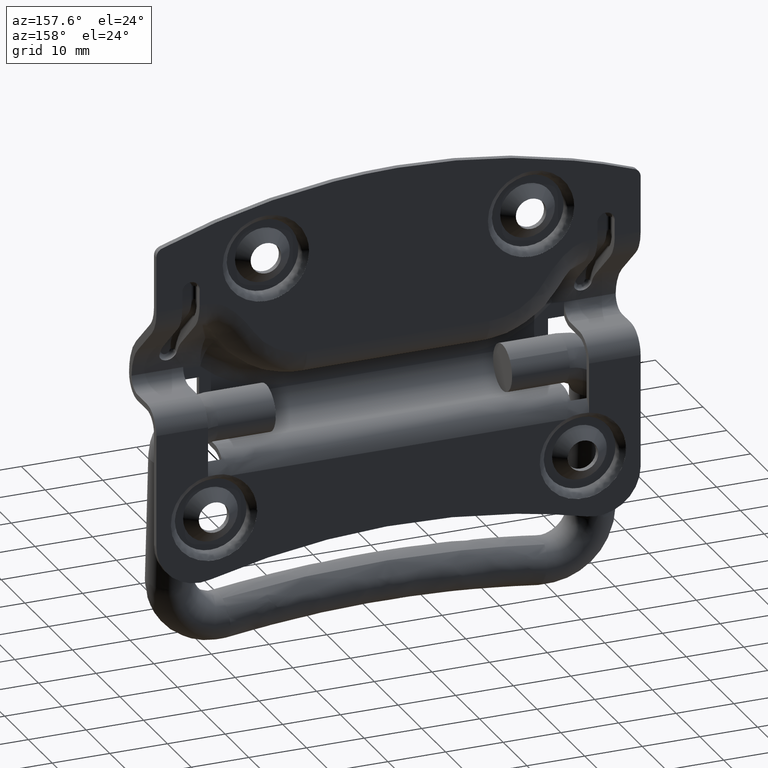
[diagram: clean part render]
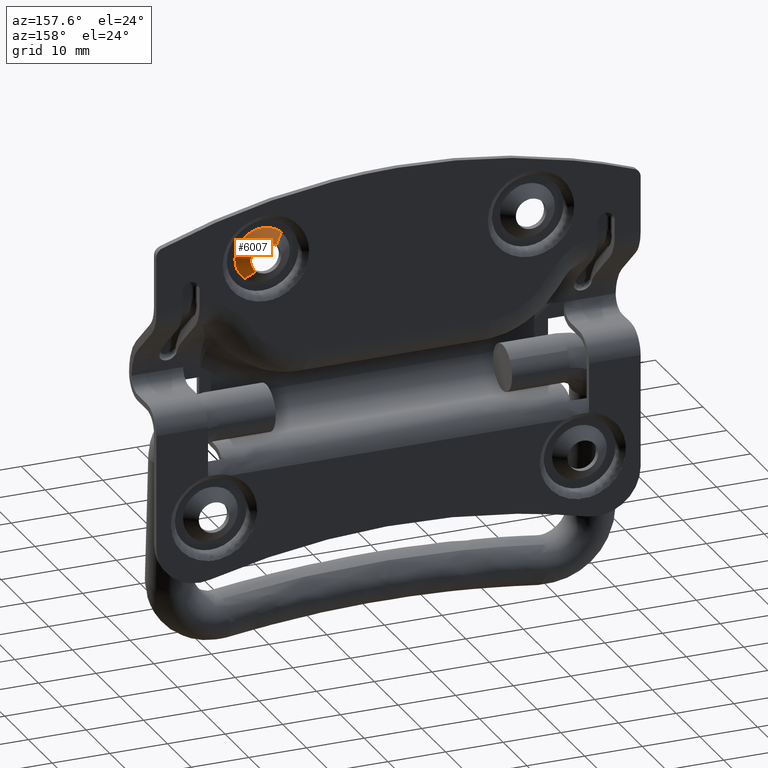
[diagram: same view with one face highlighted and labeled with its STEP entity id]
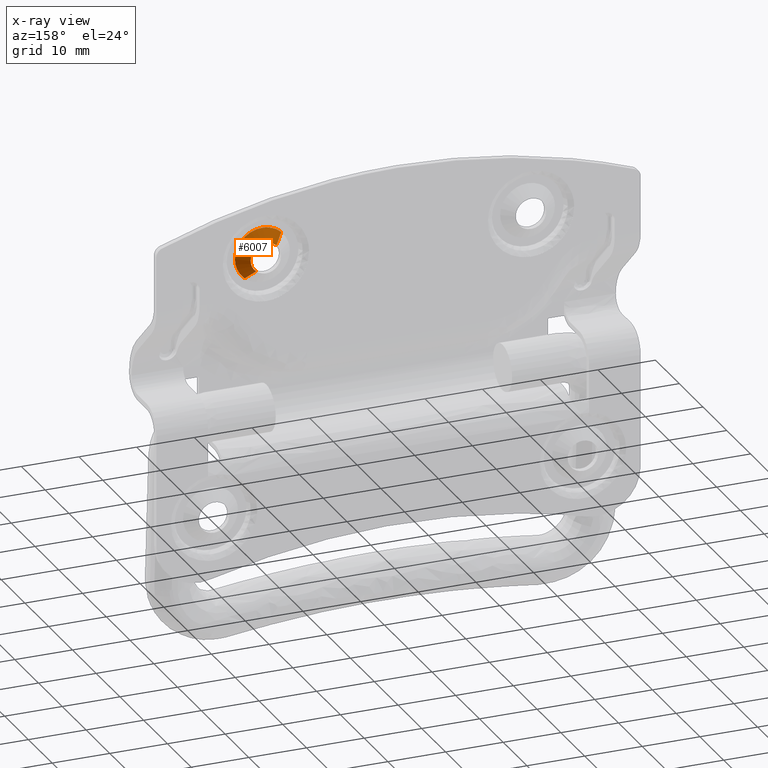
[diagram: x-ray of the same camera — body ghosted, the highlighted face saturated]
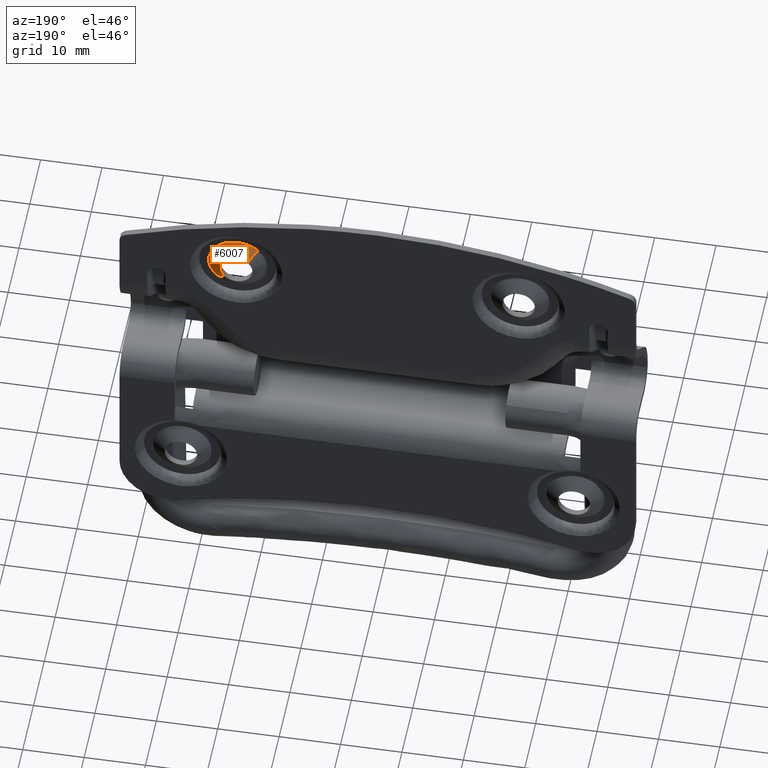
[diagram: same view with one face highlighted and labeled with its STEP entity id]
A machine part, auxiliary view. The second image highlights one B-rep face of the part: STEP entity #6007.
The next image is the same camera in x-ray: the body ghosted, the highlighted face saturated — about 0% of this face is hidden behind the body in this view.
A second angle (auxiliary view) of the same face is appended — the face is thin or edge-on in the first view.
In plain terms, the highlighted face is a freeform B-spline surface patch.
Its self-contained STEP definition (entity closure, byte-faithful):
#5899=CARTESIAN_POINT('',(24.677314944697319,5.973400000000000,27.016664217462147));
#5900=CARTESIAN_POINT('',(24.734077162694859,5.973400000000000,27.064668250556135));
#5901=CARTESIAN_POINT('',(24.788001010364528,5.973400000000000,27.115840071295580));
#5902=CARTESIAN_POINT('',(26.672160939068934,5.973399999999999,28.903841081660108));
#5903=CARTESIAN_POINT('',(24.884159928704420,5.973400000000000,30.788001010364528));
#5904=CARTESIAN_POINT('',(23.096158918339885,5.973399999999999,32.672160939068945));
#5905=CARTESIAN_POINT('',(21.211998989635479,5.973400000000000,30.884159928704420));
#5906=CARTESIAN_POINT('',(26.102023675755053,4.397462500000001,25.332021857997059));
#5907=CARTESIAN_POINT('',(26.206999634309181,4.397462500000001,25.420800442877667));
#5908=CARTESIAN_POINT('',(26.306726315149849,4.397462500000000,25.515437529351541));
#5909=CARTESIAN_POINT('',(29.791288785798315,4.397462500000000,28.822163844501379));
#5910=CARTESIAN_POINT('',(26.484562470648459,4.397462500000000,32.306726315149852));
#5911=CARTESIAN_POINT('',(23.177836155498614,4.397462500000000,35.791288785798308));
#5912=CARTESIAN_POINT('',(19.693273684850151,4.397462500000000,32.484562470648463));
#5920=(BOUNDED_SURFACE()B_SPLINE_SURFACE(2,1,((#5899,#5906),(#5900,#5907),(#5901,#5908),(#5902,#5909),(#5903,#5910),(#5904,#5911),(#5905,#5912)),.UNSPECIFIED.,.F.,.F.,.U.)B_SPLINE_SURFACE_WITH_KNOTS((3,2,2,3),(2,2),(0.0,0.318368686175585,8.277585840565200,16.236802994954811),(0.0,2.711345395106000),.UNSPECIFIED.)GEOMETRIC_REPRESENTATION_ITEM()RATIONAL_B_SPLINE_SURFACE(((0.977505800795127,0.977505800795127),(0.988284271247462,0.988284271247462),(1.0,1.0),(0.707106781186548,0.707106781186548),(1.0,1.0),(0.707106781186548,0.707106781186548),(1.0,1.0)))REPRESENTATION_ITEM('')SURFACE());
#5921=CARTESIAN_POINT('',(26.067273958165138,4.435900319101680,25.373111552290919));
#5922=VERTEX_POINT('',#5921);
#5923=CARTESIAN_POINT('',(27.749999999999211,4.435899999999999,29.000002736673530));
#5924=VERTEX_POINT('',#5923);
#5925=CARTESIAN_POINT('',(26.067273958165138,4.435900319101680,25.373111552290919));
#5926=CARTESIAN_POINT('',(26.494284017991980,4.435900287377616,25.733685518304309));
#5927=CARTESIAN_POINT('',(27.148698796478818,4.435900217851804,26.523912403077780));
#5928=CARTESIAN_POINT('',(27.655409050811208,4.435900104010072,27.817830087049121));
#5929=CARTESIAN_POINT('',(27.750047568103689,4.435900032147841,28.634612705808610));
#5930=CARTESIAN_POINT('',(27.749999999999211,4.435899999999999,29.000002736673530));
#5931=B_SPLINE_CURVE_WITH_KNOTS('',3,(#5925,#5926,#5927,#5928,#5929,#5930),.UNSPECIFIED.,.F.,.U.,(4,1,1,4),(0.000000079574416,1.676545775371363,3.030648860317239,4.126841642862074),.UNSPECIFIED.);
#5932=EDGE_CURVE('',#5922,#5924,#5931,.T.);
#5933=ORIENTED_EDGE('',*,*,#5932,.F.);
#5934=CARTESIAN_POINT('',(24.711215449759340,5.935900419482600,26.976578671817482));
#5935=VERTEX_POINT('',#5934);
#5936=CARTESIAN_POINT('',(24.711215449759340,5.935900419482600,26.976578671817482));
#5937=CARTESIAN_POINT('',(26.067273958165138,4.435900319101680,25.373111552290919));
#5938=QUASI_UNIFORM_CURVE('',1,(#5936,#5937),.UNSPECIFIED.,.F.,.U.);
#5939=EDGE_CURVE('',#5935,#5922,#5938,.T.);
#5940=ORIENTED_EDGE('',*,*,#5939,.F.);
#5941=CARTESIAN_POINT('',(25.649999999997551,5.935900000000000,29.000003597558159));
#5942=VERTEX_POINT('',#5941);
#5943=CARTESIAN_POINT('',(24.711215449759340,5.935900419482600,26.976578671817482));
#5944=CARTESIAN_POINT('',(24.876062788489730,5.935900390595135,27.115921020654451));
#5945=CARTESIAN_POINT('',(25.154945203081240,5.935900328081696,27.417462243672119));
#5946=CARTESIAN_POINT('',(25.535871158925950,5.935900188872917,28.088952698829150));
#5947=CARTESIAN_POINT('',(25.650454633363239,5.935900074597519,28.640173761591939));
#5948=CARTESIAN_POINT('',(25.649999999997551,5.935900000000000,29.000003597558159));
#5949=B_SPLINE_CURVE_WITH_KNOTS('',3,(#5943,#5944,#5945,#5946,#5947,#5948),.UNSPECIFIED.,.F.,.U.,(4,1,1,4),(0.000000109423279,0.647554529535699,1.223127353191203,2.302397949926097),.UNSPECIFIED.);
#5950=EDGE_CURVE('',#5935,#5942,#5949,.T.);
#5951=ORIENTED_EDGE('',*,*,#5950,.T.);
#5952=CARTESIAN_POINT('',(23.0,5.935900000000000,31.650000000000009));
#5953=VERTEX_POINT('',#5952);
#5954=CARTESIAN_POINT('',(25.649999999997551,5.935900000000000,29.000003597558159));
#5955=CARTESIAN_POINT('',(25.650202022182441,5.935899999999990,29.303557253013579));
#5956=CARTESIAN_POINT('',(25.548330015859360,5.935900000000011,29.888764230352798));
#5957=CARTESIAN_POINT('',(25.124920566152959,5.935899999999998,30.658330024068022));
#5958=CARTESIAN_POINT('',(24.545699021010499,5.935900000000003,31.196220062139549));
#5959=CARTESIAN_POINT('',(23.823721211911721,5.935899999999999,31.559583081407538));
#5960=CARTESIAN_POINT('',(23.303547739934089,5.935899999999997,31.650207579000270));
#5961=CARTESIAN_POINT('',(23.0,5.935900000000000,31.650000000000009));
#5962=B_SPLINE_CURVE_WITH_KNOTS('',3,(#5954,#5955,#5956,#5957,#5958,#5959,#5960,#5961),.UNSPECIFIED.,.F.,.U.,(4,1,1,1,1,4),(0.000000328214601,0.910594695756245,1.756154702109029,2.601687936839469,3.252128593980451,4.162712694820824),.UNSPECIFIED.);
#5963=EDGE_CURVE('',#5942,#5953,#5962,.T.);
#5964=ORIENTED_EDGE('',*,*,#5963,.T.);
#5965=CARTESIAN_POINT('',(21.175860986498090,5.935900212360432,30.922241635008259));
#5966=VERTEX_POINT('',#5965);
#5967=CARTESIAN_POINT('',(23.0,5.935900000000000,31.650000000000009));
#5968=CARTESIAN_POINT('',(22.727545310100648,5.935900031718301,31.650114630192199));
#5969=CARTESIAN_POINT('',(22.056928374192282,5.935900109789390,31.545702494360128));
#5970=CARTESIAN_POINT('',(21.464323773744940,5.935900178778518,31.196944270310642));
#5971=CARTESIAN_POINT('',(21.175860986498090,5.935900212360432,30.922241635008259));
#5972=B_SPLINE_CURVE_WITH_KNOTS('',3,(#5967,#5968,#5969,#5970,#5971),.UNSPECIFIED.,.F.,.U.,(4,1,4),(0.000000075484765,0.817382173391373,2.011975054251718),.UNSPECIFIED.);
#5973=EDGE_CURVE('',#5953,#5966,#5972,.T.);
#5974=ORIENTED_EDGE('',*,*,#5973,.T.);
#5975=CARTESIAN_POINT('',(19.730316547174571,4.435900323149717,32.445527438540672));
#5976=VERTEX_POINT('',#5975);
#5977=CARTESIAN_POINT('',(21.175860986498090,5.935900212360432,30.922241635008259));
#5978=CARTESIAN_POINT('',(19.730316547174571,4.435900323149717,32.445527438540672));
#5979=QUASI_UNIFORM_CURVE('',1,(#5977,#5978),.UNSPECIFIED.,.F.,.U.);
#5980=EDGE_CURVE('',#5966,#5976,#5979,.T.);
#5981=ORIENTED_EDGE('',*,*,#5980,.T.);
#5982=CARTESIAN_POINT('',(23.0,4.435900000000000,33.750000000000000));
#5983=VERTEX_POINT('',#5982);
#5984=CARTESIAN_POINT('',(23.0,4.435900000000000,33.750000000000000));
#5985=CARTESIAN_POINT('',(22.699473788089460,4.435900029701647,33.750023763473280));
#5986=CARTESIAN_POINT('',(22.060880372077889,4.435900092815171,33.689206383043960));
#5987=CARTESIAN_POINT('',(20.904622482503260,4.435900207090590,33.336026202121751));
#5988=CARTESIAN_POINT('',(20.138793516745260,4.435900282779070,32.833783482528851));
#5989=CARTESIAN_POINT('',(19.730316547174571,4.435900323149717,32.445527438540672));
#5990=B_SPLINE_CURVE_WITH_KNOTS('',3,(#5984,#5985,#5986,#5987,#5988,#5989),.UNSPECIFIED.,.F.,.U.,(4,1,1,4),(0.000000043815901,0.901592707927581,1.915877271866363,3.606370699927596),.UNSPECIFIED.);
#5991=EDGE_CURVE('',#5983,#5976,#5990,.T.);
#5992=ORIENTED_EDGE('',*,*,#5991,.F.);
#5993=CARTESIAN_POINT('',(27.749999999999211,4.435899999999999,29.000002736673530));
#5994=CARTESIAN_POINT('',(27.750695926490661,4.435899999999998,29.621904783789020));
#5995=CARTESIAN_POINT('',(27.564137097858239,4.435899999999997,30.554010087201060));
#5996=CARTESIAN_POINT('',(26.974920139190321,4.435900000000011,31.655974430898301));
#5997=CARTESIAN_POINT('',(26.380392002617491,4.435899999999980,32.380380372625993));
#5998=CARTESIAN_POINT('',(25.535332971438340,4.435900000000007,33.074230520222947));
#5999=CARTESIAN_POINT('',(24.398912720249129,4.435900000000017,33.611543001082879));
#6000=CARTESIAN_POINT('',(23.466342819692180,4.435899999999995,33.750205276028048));
#6001=CARTESIAN_POINT('',(23.0,4.435900000000000,33.750000000000000));
#6002=B_SPLINE_CURVE_WITH_KNOTS('',3,(#5993,#5994,#5995,#5996,#5997,#5998,#5999,#6000,#6001),.UNSPECIFIED.,.F.,.U.,(4,1,1,1,1,1,4),(0.000000072064447,1.865367279765132,2.798072658119034,3.730734152093313,4.663394784324747,6.062460627244487,7.461468243116306),.UNSPECIFIED.);
#6003=EDGE_CURVE('',#5924,#5983,#6002,.T.);
#6004=ORIENTED_EDGE('',*,*,#6003,.F.);
#6005=EDGE_LOOP('',(#5933,#5940,#5951,#5964,#5974,#5981,#5992,#6004));
#6006=FACE_OUTER_BOUND('',#6005,.T.);
#6007=ADVANCED_FACE('',(#6006),#5920,.T.);